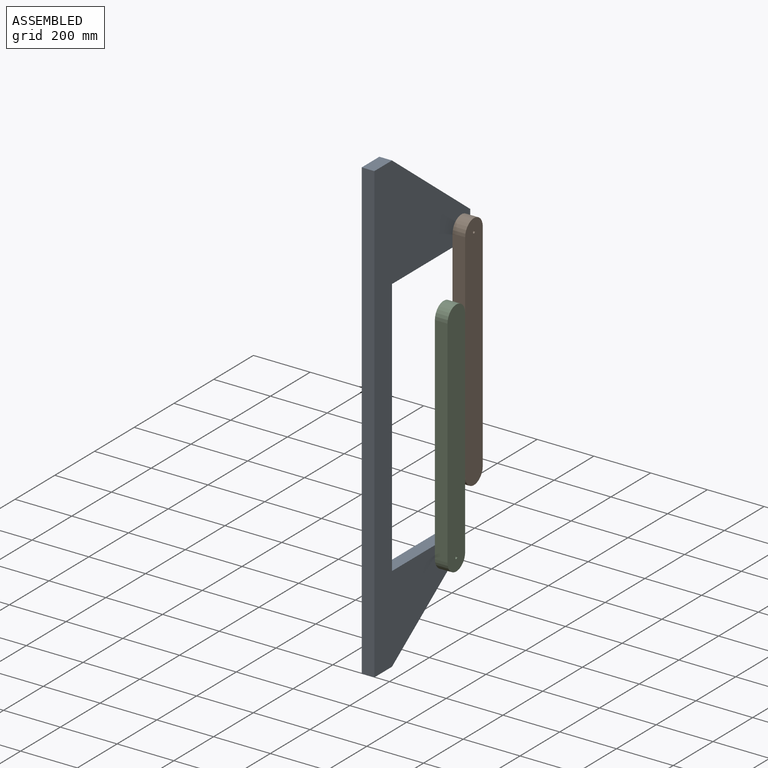
[diagram: assembled view]
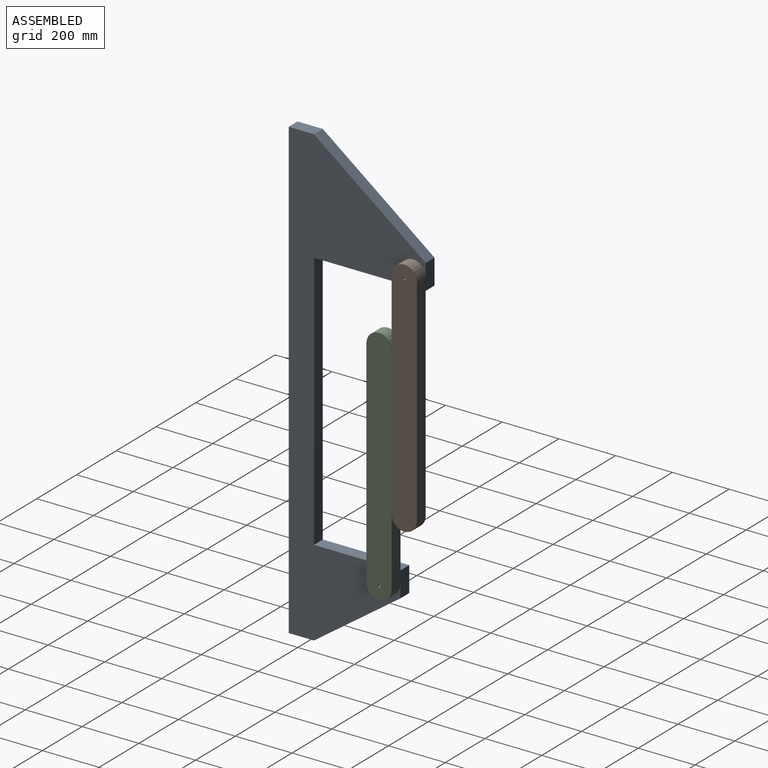
[diagram: assembled view, second angle]
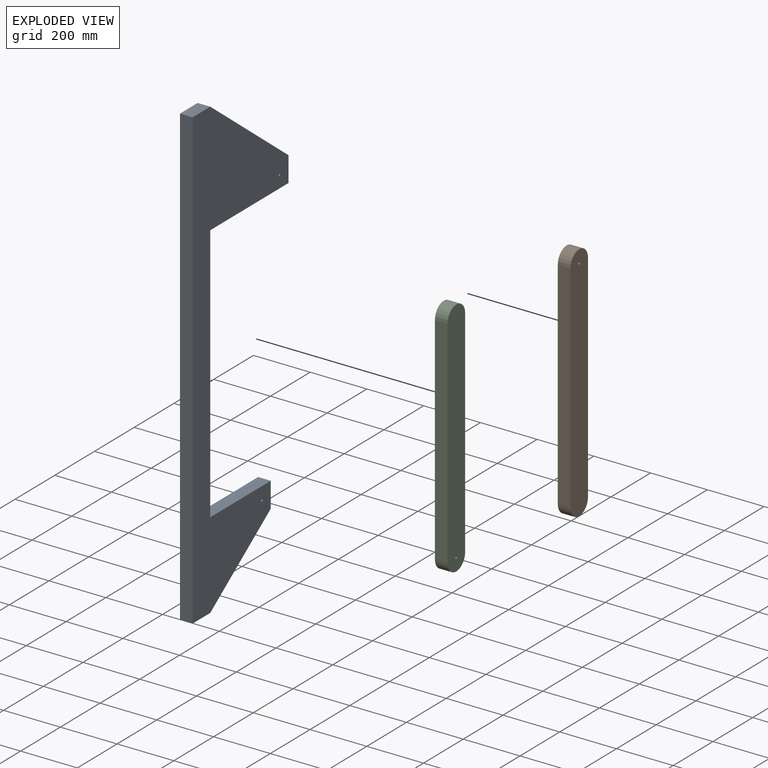
[diagram: exploded view]
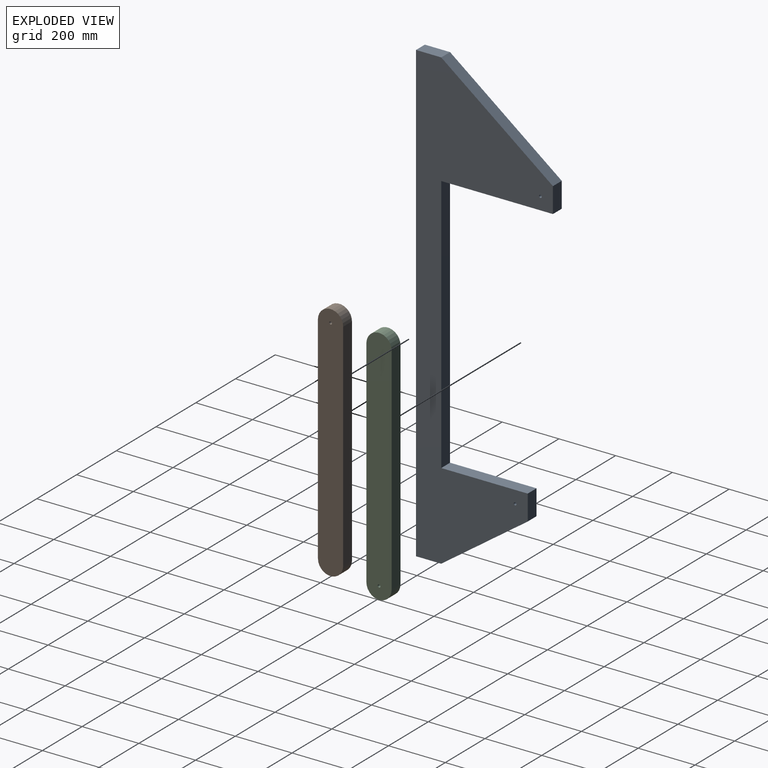
[diagram: exploded view, second angle]
ASSEMBLY  parts=3 mates=4
PART A: 14 faces, bbox 44.5x482.6x1612.9 mm
  f0: plane 88.9x44.45mm, normal (0,0,1), area 3951.6mm2, adj f1,f11,f12,f13
  f1: plane 1612.9x44.45mm, normal (0,-1,0), area 71693.4mm2, adj f0,f2,f12,f13
  f2: plane 88.9x44.45mm, normal (0,0,-1), area 3951.6mm2, adj f1,f3,f12,f13
  f3: plane 304.8x215.9mm, normal (0,0.58,-0.82), area 16602.9mm2, adj f2,f4,f12,f13
  f4: plane 88.9x44.45mm, normal (0,1,0), area 3951.6mm2, adj f3,f5,f12,f13
  f5: plane 304.8x44.45mm, normal (0,0,1), area 13548.4mm2, adj f4,f6,f12,f13
  f6: plane 914.4x44.45mm, normal (0,1,0), area 40645.1mm2, adj f5,f7,f12,f13
  f7: plane 393.7x44.45mm, normal (0,0,-1), area 17500mm2, adj f6,f8,f12,f13
  f8: plane 88.9x44.45mm, normal (0,1,0), area 3951.6mm2, adj f7,f11,f12,f13
  f9: cylinder r=4.76mm len=44.45mm, axis (-1,0,0), area 1330.1mm2, adj f12,f13
  f10: cylinder r=4.76mm len=44.45mm, axis (-1,0,0), area 1330.1mm2, adj f12,f13
  f11: plane 393.7x304.8mm, normal (0,0.61,0.79), area 22131.6mm2, adj f0,f8,f12,f13
  f12: plane 1612.9x482.6mm, normal (1,0,0), area 298244mm2, adj f0,f1,f2,f3,f4,f5,f6,f7
  f13: plane 1612.9x482.6mm, normal (-1,0,0), area 298244mm2, adj f0,f1,f2,f3,f4,f5,f6,f7
PART B: 7 faces, bbox 44.5x88.9x850.9 mm
  f0: plane 762x44.45mm, normal (0,-1,0), area 33870.9mm2, adj f1,f4,f5,f6
  f1: cylinder r=44.45mm len=88.9mm, axis (-1,0,0), area 6207.2mm2, adj f0,f2,f5,f6
  f2: plane 762x44.45mm, normal (0,1,0), area 33870.9mm2, adj f1,f4,f5,f6
  f3: cylinder r=4.76mm len=44.45mm, axis (-1,0,0), area 1330.1mm2, adj f5,f6
  f4: cylinder r=44.45mm len=88.9mm, axis (-1,0,0), area 6207.2mm2, adj f0,f2,f5,f6
  f5: plane 850.9x88.9mm, normal (1,0,0), area 73877.7mm2, adj f0,f1,f2,f3,f4
  f6: plane 850.9x88.9mm, normal (-1,0,0), area 73877.7mm2, adj f0,f1,f2,f3,f4
PART C: same geometry as B
PLACE A t=(-265.43,242.56,5.94)mm fixed
PLACE B rot(axis=(-1,0,0),180deg) t=(-220.98,591.81,964.79)mm
PLACE C t=(-220.98,502.91,-38.51)mm
MATE cylindrical C.f3 <-> A.f9  axis (-1,0,0) through (-220.98,502.91,-38.51)mm
MATE parallel A.f12 <-> B.f6  axis (1,0,0) through (-220.98,295.6,559.92)mm
MATE parallel A.f12 <-> C.f6  axis (1,0,0) through (-220.98,295.6,559.92)mm
MATE cylindrical A.f10 <-> B.f1  axis (1,0,0) through (-220.98,591.81,964.79)mm
